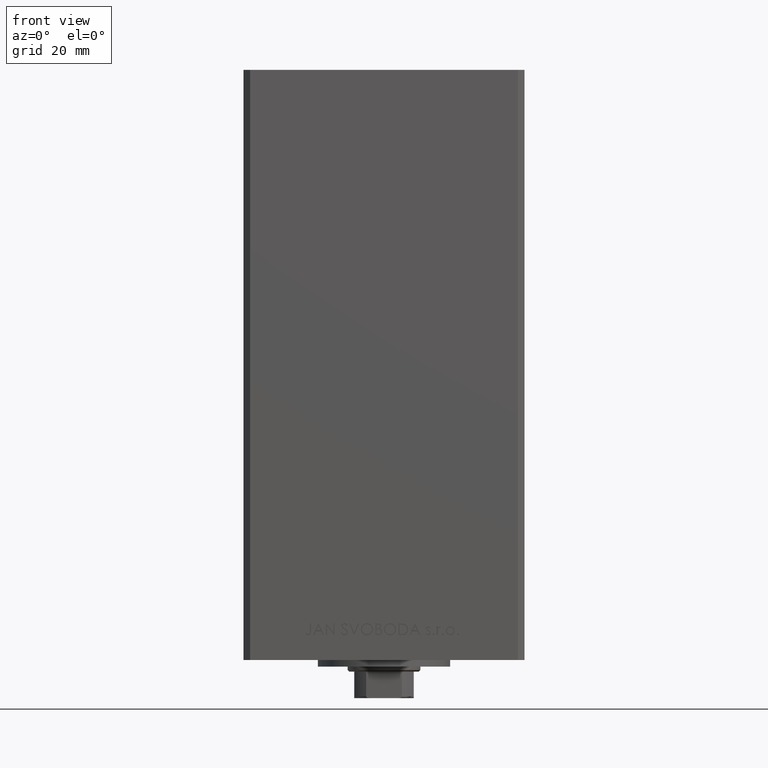
[diagram: clean part render]
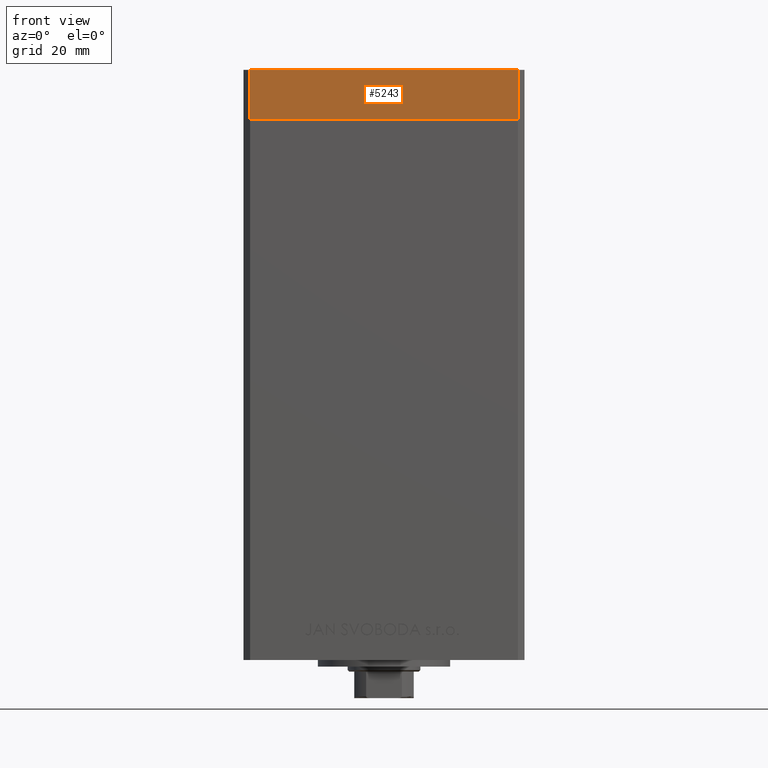
[diagram: same view with one face highlighted and labeled with its STEP entity id]
A machine part, front view. The second image highlights one B-rep face of the part: STEP entity #5243.
In plain terms, the highlighted planar face has unit normal (0, -1, 0).
Its self-contained STEP definition (entity closure, byte-faithful):
#200 = VECTOR ( 'NONE', #7421, 1000.000000000000000 ) ;
#271 = VECTOR ( 'NONE', #48165, 1000.000000000000000 ) ;
#733 = VECTOR ( 'NONE', #30388, 1000.000000000000000 ) ;
#1344 = CARTESIAN_POINT ( 'NONE',  ( 40.50000000000000000, -37.50000000000000711, -15.00000000000000000 ) ) ;
#5243 = ADVANCED_FACE ( 'NONE', ( #28367 ), #12415, .T. ) ;
#7301 = CARTESIAN_POINT ( 'NONE',  ( -40.49999999999999289, -37.50000000000002132, -15.00000000000000000 ) ) ;
#7421 = DIRECTION ( 'NONE',  ( 0.000000000000000000, 0.000000000000000000, 1.000000000000000000 ) ) ;
#8019 = VERTEX_POINT ( 'NONE', #1344 ) ;
#12415 = PLANE ( 'NONE',  #25433 ) ;
#14308 = ORIENTED_EDGE ( 'NONE', *, *, #40761, .F. ) ;
#15182 = CARTESIAN_POINT ( 'NONE',  ( -40.49999999999999289, -37.50000000000002132, 0.000000000000000000 ) ) ;
#16146 = EDGE_CURVE ( 'NONE', #25821, #8019, #48945, .T. ) ;
#18246 = CARTESIAN_POINT ( 'NONE',  ( -40.49999999999999289, -37.50000000000002132, -15.00000000000000000 ) ) ;
#19114 = LINE ( 'NONE', #45508, #200 ) ;
#20153 = DIRECTION ( 'NONE',  ( 1.000000000000000000, 1.713307136767217096E-16, 0.000000000000000000 ) ) ;
#21553 = CARTESIAN_POINT ( 'NONE',  ( -40.49999999999999289, -37.50000000000002132, -15.00000000000000000 ) ) ;
#23592 = VERTEX_POINT ( 'NONE', #27192 ) ;
#23909 = EDGE_CURVE ( 'NONE', #23592, #47422, #26658, .T. ) ;
#25433 = AXIS2_PLACEMENT_3D ( 'NONE', #35101, #43546, #20153 ) ;
#25821 = VERTEX_POINT ( 'NONE', #18246 ) ;
#25980 = ORIENTED_EDGE ( 'NONE', *, *, #38761, .T. ) ;
#26658 = LINE ( 'NONE', #15182, #733 ) ;
#27192 = CARTESIAN_POINT ( 'NONE',  ( -40.49999999999999289, -37.50000000000002132, 0.000000000000000000 ) ) ;
#27677 = ORIENTED_EDGE ( 'NONE', *, *, #23909, .F. ) ;
#28367 = FACE_OUTER_BOUND ( 'NONE', #36526, .T. ) ;
#29746 = VECTOR ( 'NONE', #38401, 1000.000000000000000 ) ;
#30388 = DIRECTION ( 'NONE',  ( 1.000000000000000000, 1.713307136767217096E-16, 0.000000000000000000 ) ) ;
#31074 = ORIENTED_EDGE ( 'NONE', *, *, #16146, .T. ) ;
#33916 = CARTESIAN_POINT ( 'NONE',  ( 40.50000000000000000, -37.50000000000000711, 0.000000000000000000 ) ) ;
#35101 = CARTESIAN_POINT ( 'NONE',  ( -40.49999999999999289, -37.50000000000002132, -15.00000000000000000 ) ) ;
#35715 = LINE ( 'NONE', #7301, #271 ) ;
#36526 = EDGE_LOOP ( 'NONE', ( #27677, #14308, #31074, #25980 ) ) ;
#38401 = DIRECTION ( 'NONE',  ( 1.000000000000000000, 1.713307136767217096E-16, 0.000000000000000000 ) ) ;
#38761 = EDGE_CURVE ( 'NONE', #8019, #47422, #19114, .T. ) ;
#40761 = EDGE_CURVE ( 'NONE', #25821, #23592, #35715, .T. ) ;
#43546 = DIRECTION ( 'NONE',  ( 1.713307136767217096E-16, -1.000000000000000000, 0.000000000000000000 ) ) ;
#45508 = CARTESIAN_POINT ( 'NONE',  ( 40.50000000000000000, -37.50000000000000711, -15.00000000000000000 ) ) ;
#47422 = VERTEX_POINT ( 'NONE', #33916 ) ;
#48165 = DIRECTION ( 'NONE',  ( 0.000000000000000000, 0.000000000000000000, 1.000000000000000000 ) ) ;
#48945 = LINE ( 'NONE', #21553, #29746 ) ;